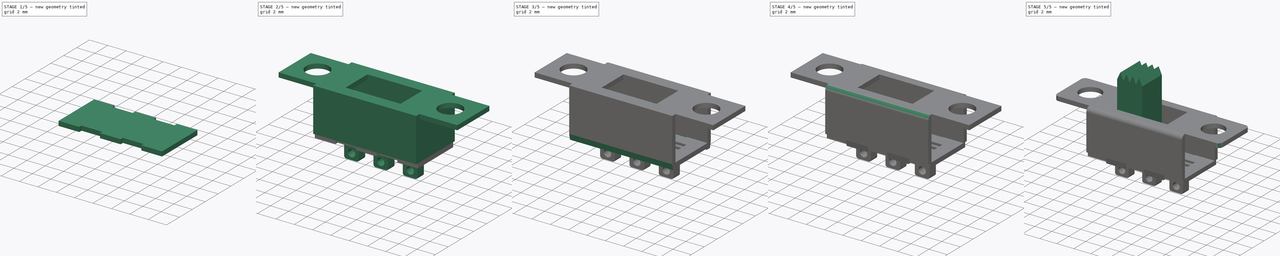
[diagram: build sequence overview — one tinted view per stage of 5, left to right]
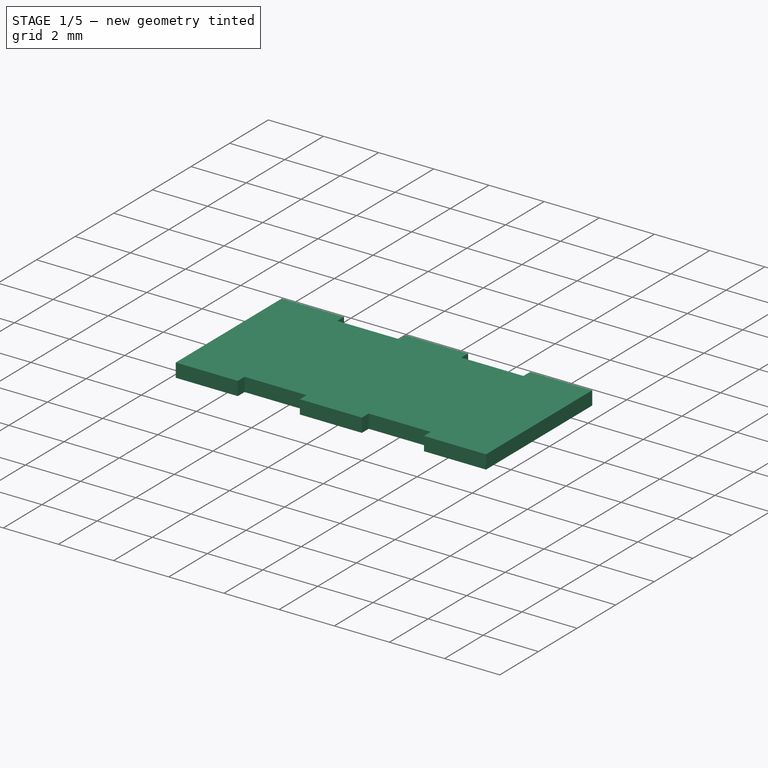
[diagram: stage 1 of 5 — iso view after this stage's code; geometry added in this stage tinted green]
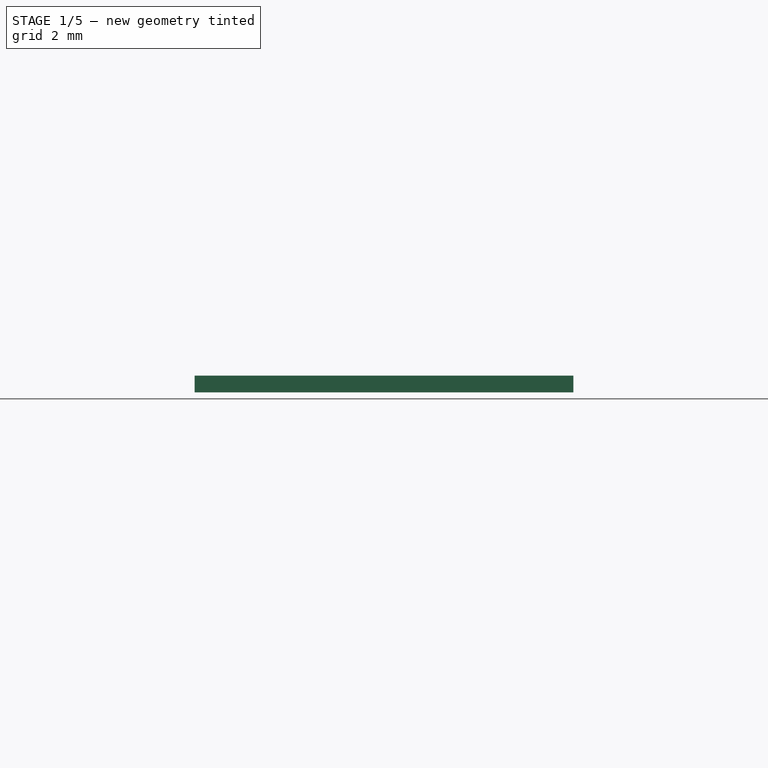
[diagram: stage 1 of 5 — front view after this stage's code; geometry added in this stage tinted green]
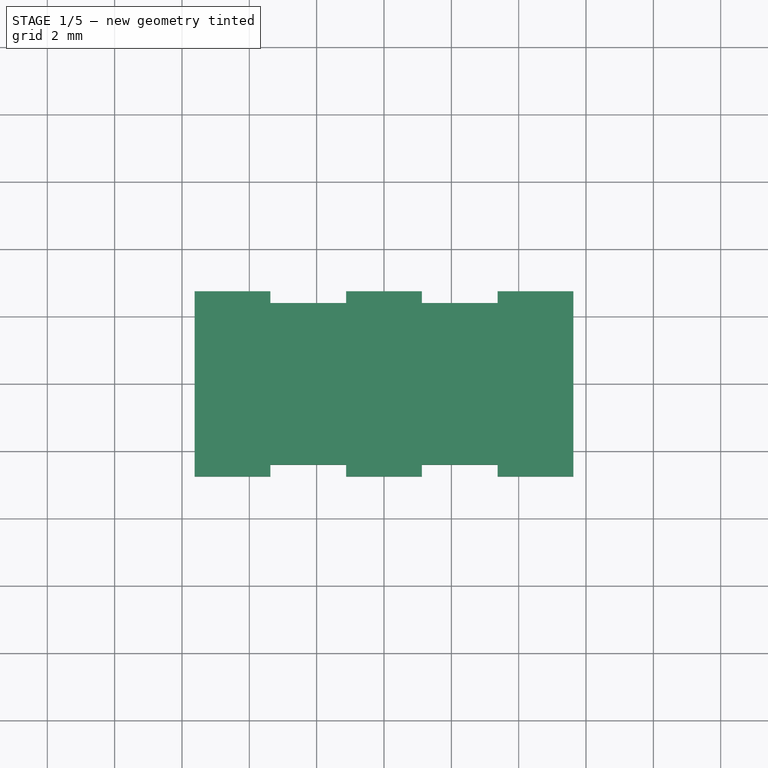
[diagram: stage 1 of 5 — top view after this stage's code; geometry added in this stage tinted green]
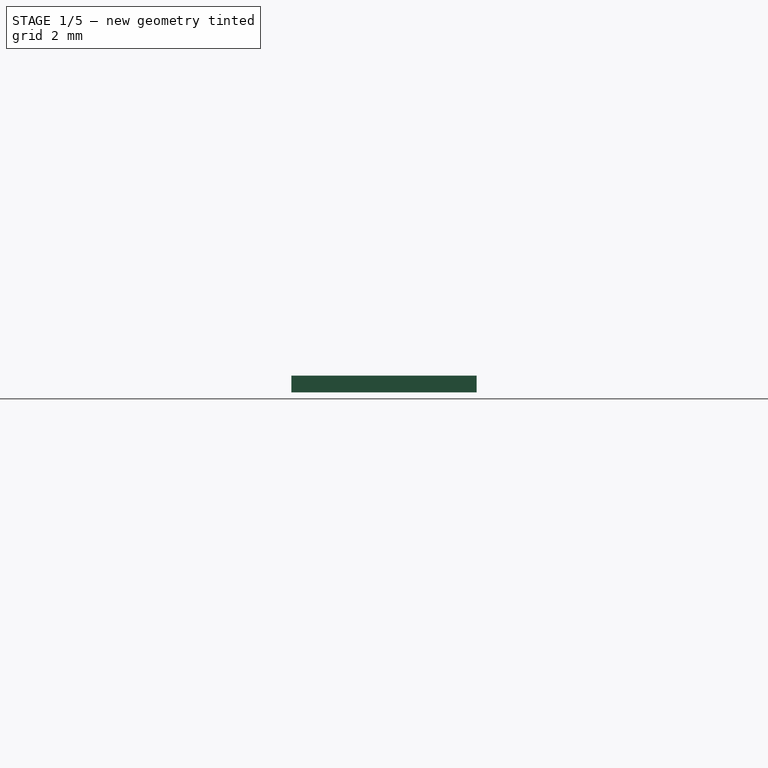
[diagram: stage 1 of 5 — right view after this stage's code; geometry added in this stage tinted green]
FCSTD DOCUMENT  (FreeCAD 1.0R39109 (Git))
Label: switch
License: Creative Commons Attribution-NonCommercial-ShareAlike 4.0
LicenseURL: https://creativecommons.org/licenses/by-nc-sa/4.0/
objects: Sketcher::SketchObject×14, PartDesign::Pocket×8, PartDesign::Pad×7, PartDesign::Body×3, PartDesign::Fillet×2, Spreadsheet::Sheet×1, Part::Part2DObjectPython×1, App::Part×1
note: 83 computed .brp shape members not serialized (recipe doc carries the construction recipe); baked Part::Feature solids carry a one-line shape summary decoded from their .brp

FEATURE [Sketcher::SketchObject] Sketch002
  ArcFitTolerance = 1e-06
  AttachmentOffset = pos=(0,0,-4.77) rot=(0,0,1;0rad)
  AttachmentSupport = -> [XY_Plane002]
  FullyConstrained = true
  MakeInternals = false
  MapMode = 5
  Placement = pos=(0,0,-4.77) rot=(0,0,1;0rad)
  expr: .AttachmentOffset.Base.z = -(<<Parameter>>.Housing_Front_Thickness + <<Parameter>>.Housing_Back_Thickness)
  expr: Constraints[10] = <<Parameter>>.Housing_Back_Height / 2 - <<Parameter>>.Housing_Front_Thickness / 2
  expr: Constraints[11] = <<Parameter>>.Housing_Back_Height - <<Parameter>>.Housing_Front_Thickness
  expr: Constraints[8] = <<Parameter>>.Housing_Back_Width / 2
  expr: Constraints[9] = <<Parameter>>.Housing_Back_Width
  sketch-geometry (4):
    g0: LineSegment StartX=-5.625 StartY=2.75 StartZ=0 EndX=-5.625 EndY=-2.75 EndZ=0
    g1: LineSegment StartX=-5.625 StartY=-2.75 StartZ=0 EndX=5.625 EndY=-2.75 EndZ=0
    g2: LineSegment StartX=5.625 StartY=-2.75 StartZ=0 EndX=5.625 EndY=2.75 EndZ=0
    g3: LineSegment StartX=5.625 StartY=2.75 StartZ=0 EndX=-5.625 EndY=2.75 EndZ=0
  constraints (12):
    c: Coincident(g0,g1)
    c: Coincident(g1,g2)
    c: Coincident(g2,g3)
    c: Coincident(g3,g0)
    c: Vertical(g0)
    c: Vertical(g2)
    c: Horizontal(g1)
    c: Horizontal(g3)
    c: DistanceX(g0,g-1) = 5.625
    c: DistanceX(g3,g3) = 11.25
    c: DistanceY(g-1,g0) = 2.75
    c: DistanceY(g0,g0) = 5.5
FEATURE [PartDesign::Pad] Pad002
  Direction = (0,0,1)
  Length = 0.5
  Length2 = 10
  Profile = -> Sketch002
  ReferenceAxis = -> Sketch002 [N_Axis]
  Refine = true
  Reversed = true
  Suppressed = false
  Type = 0
  expr: Length = <<Parameter>>.Housing_Front_Thickness
FEATURE [Sketcher::SketchObject] Sketch009
  ArcFitTolerance = 1e-06
  AttachmentOffset = pos=(0,0,2.75) rot=(0,0,1;0rad)
  AttachmentSupport = -> [XZ_Plane002]
  FullyConstrained = true
  MakeInternals = false
  MapMode = 5
  Placement = pos=(0,-2.75,6e-16) rot=(1,0,0;1.5708rad)
  expr: .AttachmentOffset.Base.x = 0
  expr: .AttachmentOffset.Base.y = 0
  expr: .AttachmentOffset.Base.z = <<Parameter>>.Housing_Front_Length / 2 - <<Parameter>>.Housing_Front_Thickness / 2
  expr: Constraints[16] = <<Parameter>>.Housing_Back_Width * 1 / 5
  expr: Constraints[17] = <<Parameter>>.Housing_Back_Width * 1 / 10
  expr: Constraints[18] = <<Parameter>>.Housing_Front_Thickness
  expr: Constraints[19] = <<Parameter>>.Housing_Front_Thickness
  expr: Constraints[20] = <<Parameter>>.Housing_Front_Thickness + <<Parameter>>.Housing_Back_Thickness
  expr: Constraints[21] = <<Parameter>>.Housing_Front_Thickness + <<Parameter>>.Housing_Back_Thickness
  expr: Constraints[22] = <<Parameter>>.Housing_Back_Width * 1 / 5
  expr: Constraints[23] = <<Parameter>>.Housing_Back_Width * 1 / 5
  sketch-geometry (8):
    g0: LineSegment StartX=-3.375 StartY=-4.77 StartZ=0 EndX=-3.375 EndY=-5.27 EndZ=0
    g1: LineSegment StartX=-3.375 StartY=-5.27 StartZ=0 EndX=-1.125 EndY=-5.27 EndZ=0
    g2: LineSegment StartX=-1.125 StartY=-5.27 StartZ=0 EndX=-1.125 EndY=-4.77 EndZ=0
    g3: LineSegment StartX=-1.125 StartY=-4.77 StartZ=0 EndX=-3.375 EndY=-4.77 EndZ=0
    g4: LineSegment StartX=1.125 StartY=-4.77 StartZ=0 EndX=1.125 EndY=-5.27 EndZ=0
    g5: LineSegment StartX=1.125 StartY=-5.27 StartZ=0 EndX=3.375 EndY=-5.27 EndZ=0
    g6: LineSegment StartX=3.375 StartY=-5.27 StartZ=0 EndX=3.375 EndY=-4.77 EndZ=0
    g7: LineSegment StartX=3.375 StartY=-4.77 StartZ=0 EndX=1.125 EndY=-4.77 EndZ=0
  constraints (24):
    c: Coincident(g0,g1)
    c: Coincident(g1,g2)
    c: Coincident(g2,g3)
    c: Coincident(g3,g0)
    c: Vertical(g0)
    c: Vertical(g2)
    c: Horizontal(g1)
    c: Horizontal(g3)
    c: Coincident(g4,g5)
    c: Coincident(g5,g6)
    c: Coincident(g6,g7)
    c: Coincident(g7,g4)
    c: Vertical(g4)
    c: Vertical(g6)
    c: Horizontal(g5)
    c: Horizontal(g7)
    c: DistanceX(g2,g4) = 2.25
    c: DistanceX(g2,g-1) = 1.125
    c: DistanceY(g2,g2) = 0.5
    c: DistanceY(g4,g4) = 0.5
    c: DistanceY(g4,g-1) = 4.77
    c: DistanceY(g2,g-1) = 4.77
    c: DistanceX(g3,g3) = 2.25
    c: DistanceX(g7,g7) = 2.25
FEATURE [PartDesign::Pocket] Pocket004
  BaseFeature = -> Pad002
  Direction = (0,1,-2e-16)
  Length = 0.7
  Length2 = 5
  Midplane = true
  Profile = -> Sketch009
  ReferenceAxis = -> Sketch009 [N_Axis]
  Refine = true
  Suppressed = false
  Type = 0
  expr: Length = <<Parameter>>.Housing_Front_Thickness + <<Parameter>>.Housing_Front_Thickness * 2 / 5
FEATURE [Sketcher::SketchObject] Sketch010
  ArcFitTolerance = 1e-06
  AttachmentOffset = pos=(0,0,-2.75) rot=(0,0,1;0rad)
  AttachmentSupport = -> [XZ_Plane002]
  FullyConstrained = true
  MakeInternals = false
  MapMode = 5
  Placement = pos=(0,2.75,-6e-16) rot=(1,0,0;1.5708rad)
  expr: .AttachmentOffset.Base.x = 0
  expr: .AttachmentOffset.Base.y = 0
  expr: .AttachmentOffset.Base.z = -(<<Parameter>>.Housing_Front_Length / 2 - <<Parameter>>.Housing_Front_Thickness / 2)
  expr: Constraints[16] = <<Parameter>>.Housing_Back_Width * 1 / 5
  expr: Constraints[17] = <<Parameter>>.Housing_Back_Width * 1 / 10
  expr: Constraints[18] = <<Parameter>>.Housing_Front_Thickness
  expr: Constraints[19] = <<Parameter>>.Housing_Front_Thickness
  expr: Constraints[20] = <<Parameter>>.Housing_Front_Thickness + <<Parameter>>.Housing_Back_Thickness
  expr: Constraints[21] = <<Parameter>>.Housing_Front_Thickness + <<Parameter>>.Housing_Back_Thickness
  expr: Constraints[22] = <<Parameter>>.Housing_Back_Width * 1 / 5
  expr: Constraints[23] = <<Parameter>>.Housing_Back_Width * 1 / 5
  sketch-geometry (8):
    g0: LineSegment StartX=-3.375 StartY=-4.77 StartZ=0 EndX=-3.375 EndY=-5.27 EndZ=0
    g1: LineSegment StartX=-3.375 StartY=-5.27 StartZ=0 EndX=-1.125 EndY=-5.27 EndZ=0
    g2: LineSegment StartX=-1.125 StartY=-5.27 StartZ=0 EndX=-1.125 EndY=-4.77 EndZ=0
    g3: LineSegment StartX=-1.125 StartY=-4.77 StartZ=0 EndX=-3.375 EndY=-4.77 EndZ=0
    g4: LineSegment StartX=1.125 StartY=-4.77 StartZ=0 EndX=1.125 EndY=-5.27 EndZ=0
    g5: LineSegment StartX=1.125 StartY=-5.27 StartZ=0 EndX=3.375 EndY=-5.27 EndZ=0
    g6: LineSegment StartX=3.375 StartY=-5.27 StartZ=0 EndX=3.375 EndY=-4.77 EndZ=0
    g7: LineSegment StartX=3.375 StartY=-4.77 StartZ=0 EndX=1.125 EndY=-4.77 EndZ=0
  constraints (24):
    c: Coincident(g0,g1)
    c: Coincident(g1,g2)
    c: Coincident(g2,g3)
    c: Coincident(g3,g0)
    c: Vertical(g0)
    c: Vertical(g2)
    c: Horizontal(g1)
    c: Horizontal(g3)
    c: Coincident(g4,g5)
    c: Coincident(g5,g6)
    c: Coincident(g6,g7)
    c: Coincident(g7,g4)
    c: Vertical(g4)
    c: Vertical(g6)
    c: Horizontal(g5)
    c: Horizontal(g7)
    c: DistanceX(g2,g4) = 2.25
    c: DistanceX(g2,g-1) = 1.125
    c: DistanceY(g2,g2) = 0.5
    c: DistanceY(g4,g4) = 0.5
    c: DistanceY(g4,g-1) = 4.77
    c: DistanceY(g2,g-1) = 4.77
    c: DistanceX(g3,g3) = 2.25
    c: DistanceX(g7,g7) = 2.25
FEATURE [PartDesign::Pocket] Pocket005
  BaseFeature = -> Pocket004
  Direction = (0,1,-2e-16)
  Length = 0.7
  Length2 = 5
  Midplane = true
  Profile = -> Sketch010
  ReferenceAxis = -> Sketch010 [N_Axis]
  Refine = true
  Suppressed = false
  Type = 0
  expr: Length = <<Parameter>>.Housing_Front_Thickness + <<Parameter>>.Housing_Front_Thickness * 2 / 5
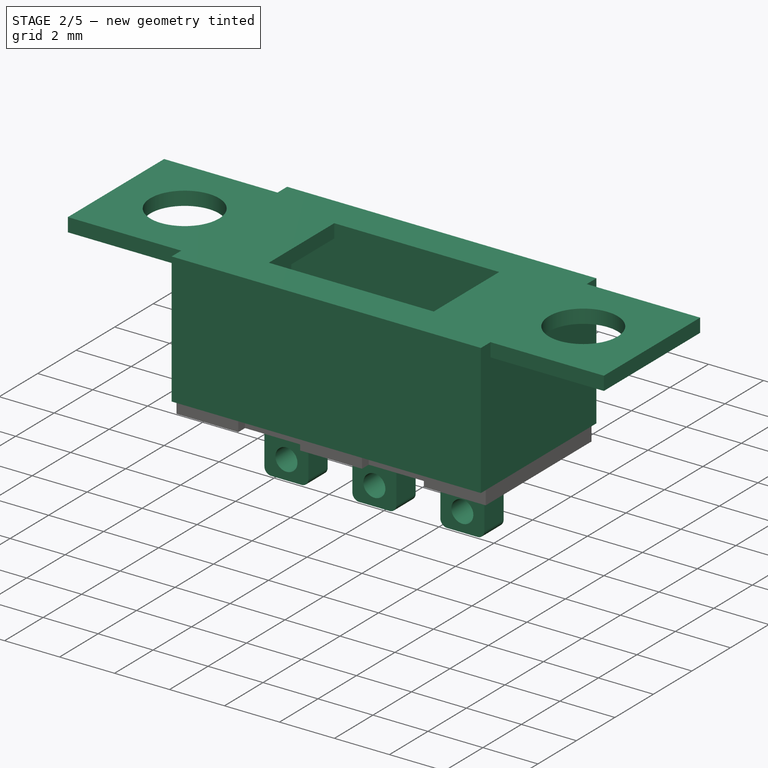
[diagram: stage 2 of 5 — iso view after this stage's code; geometry added in this stage tinted green]
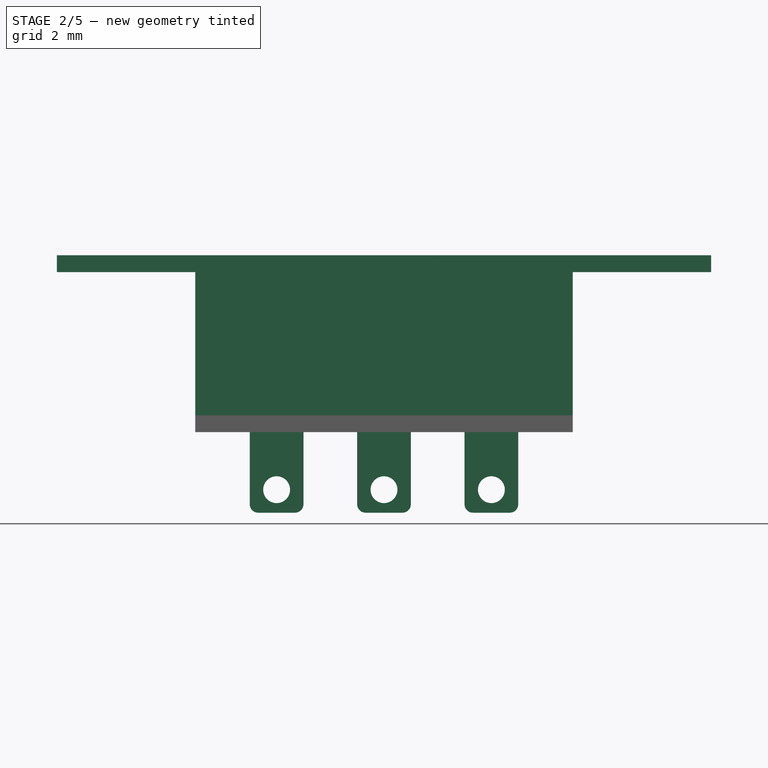
[diagram: stage 2 of 5 — front view after this stage's code; geometry added in this stage tinted green]
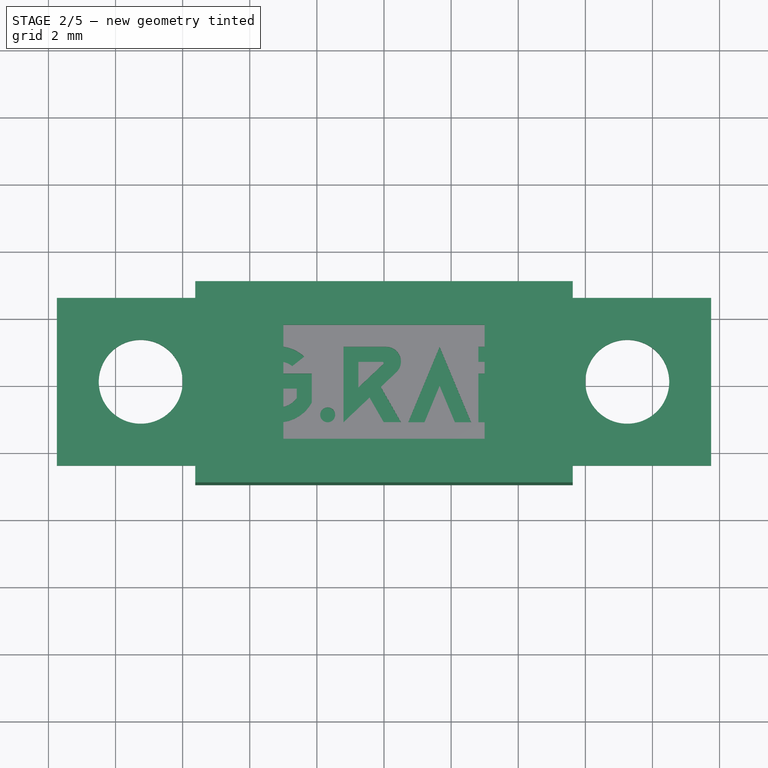
[diagram: stage 2 of 5 — top view after this stage's code; geometry added in this stage tinted green]
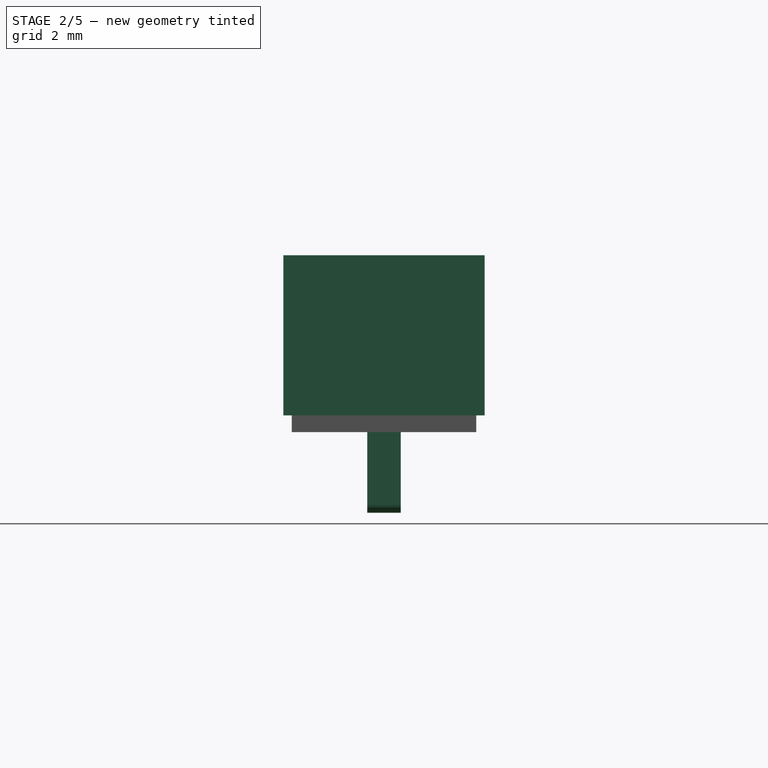
[diagram: stage 2 of 5 — right view after this stage's code; geometry added in this stage tinted green]
FEATURE [Spreadsheet::Sheet] Spreadsheet  label="Parameter"
FEATURE [Sketcher::SketchObject] Sketch
  ArcFitTolerance = 1e-06
  AttachmentSupport = -> [XY_Plane001]
  FullyConstrained = true
  MakeInternals = false
  MapMode = 5
  expr: Constraints[18] = <<Parameter>>.Housing_Clearance_Width
  expr: Constraints[19] = <<Parameter>>.Housing_Clearance_Length
  expr: Constraints[20] = <<Parameter>>.Housing_Clearance_Width / 2
  expr: Constraints[21] = <<Parameter>>.Housing_Clearance_Length / 2
  expr: Constraints[40] = <<Parameter>>.Housing_Front_Width
  expr: Constraints[41] = <<Parameter>>.Housing_Front_Length
  expr: Constraints[42] = <<Parameter>>.Housing_Front_Thickness
  expr: Constraints[43] = <<Parameter>>.Housing_Front_Thickness
  expr: Constraints[44] = <<Parameter>>.Housing_Front_Thickness
  expr: Constraints[45] = <<Parameter>>.Housing_Front_Thickness
  expr: Constraints[48] = <<Parameter>>.Housing_Front_Length / 2
  expr: Constraints[49] = <<Parameter>>.Housing_Back_Width
  expr: Constraints[50] = <<Parameter>>.Housing_Back_Width
  expr: Constraints[51] = <<Parameter>>.Housing_Back_Width / 2
  expr: Constraints[52] = (<<Parameter>>.Housing_Front_Width - <<Parameter>>.Housing_Back_Width) / 2
  expr: Constraints[5] = <<Parameter>>.Housing_Holes_Diameter
  expr: Constraints[8] = <<Parameter>>.Housing_Front_Width / 2 - <<Parameter>>.Housing_Holes_Border_Distance
  expr: Constraints[9] = <<Parameter>>.Housing_Front_Width / 2 - <<Parameter>>.Housing_Holes_Border_Distance
  sketch-geometry (18):
    g0: LineSegment StartX=-9.75 StartY=2.5 StartZ=0 EndX=-9.75 EndY=-2.5 EndZ=0
    g1: LineSegment StartX=-5.625 StartY=-3 StartZ=0 EndX=5.625 EndY=-3 EndZ=0
    g2: LineSegment StartX=9.75 StartY=-2.5 StartZ=0 EndX=9.75 EndY=2.5 EndZ=0
    g3: LineSegment StartX=5.625 StartY=3 StartZ=0 EndX=-5.625 EndY=3 EndZ=0
    g4: Circle CenterX=-7.25 CenterY=0 CenterZ=0 NormalX=0 NormalY=0 NormalZ=1 AngleXU=0 Radius=1.25
    g5: Circle CenterX=7.25 CenterY=0 CenterZ=0 NormalX=0 NormalY=0 NormalZ=1 AngleXU=0 Radius=1.25
    g6: LineSegment StartX=-3 StartY=1.7 StartZ=0 EndX=-3 EndY=-1.7 EndZ=0
    g7: LineSegment StartX=-3 StartY=-1.7 StartZ=0 EndX=3 EndY=-1.7 EndZ=0
    g8: LineSegment StartX=3 StartY=-1.7 StartZ=0 EndX=3 EndY=1.7 EndZ=0
    g9: LineSegment StartX=3 StartY=1.7 StartZ=0 EndX=-3 EndY=1.7 EndZ=0
    g10: LineSegment StartX=-9.75 StartY=2.5 StartZ=0 EndX=-5.625 EndY=2.5 EndZ=0
    g11: LineSegment StartX=-5.625 StartY=2.5 StartZ=0 EndX=-5.625 EndY=3 EndZ=0
    g12: LineSegment StartX=-9.75 StartY=-2.5 StartZ=0 EndX=-5.625 EndY=-2.5 EndZ=0
    g13: LineSegment StartX=-5.625 StartY=-2.5 StartZ=0 EndX=-5.625 EndY=-3 EndZ=0
    g14: LineSegment StartX=5.625 StartY=-3 StartZ=0 EndX=5.625 EndY=-2.5 EndZ=0
    g15: LineSegment StartX=5.625 StartY=-2.5 StartZ=0 EndX=9.75 EndY=-2.5 EndZ=0
    g16: LineSegment StartX=9.75 StartY=2.5 StartZ=0 EndX=5.625 EndY=2.5 EndZ=0
    g17: LineSegment StartX=5.625 StartY=2.5 StartZ=0 EndX=5.625 EndY=3 EndZ=0
  constraints (54):
    c: Vertical(g0)
    c: Vertical(g2)
    c: Horizontal(g1)
    c: Horizontal(g3)
    c: Horizontal(g4,g5)
    c: Diameter(g4) = 2.5
    c: Equal(g4,g5)
    c: PointOnObject(g4,g-1)
    c: DistanceX(g4,g-1) = 7.25
    c: DistanceX(g-1,g5) = 7.25
    c: Coincident(g6,g7)
    c: Coincident(g7,g8)
    c: Coincident(g8,g9)
    c: Coincident(g9,g6)
    c: Vertical(g6)
    c: Vertical(g8)
    c: Horizontal(g7)
    c: Horizontal(g9)
    c: DistanceX(g9,g9) = 6
    c: DistanceY(g6,g6) = 3.4
    c: DistanceX(g-1,g8) = 3
    c: DistanceY(g-1,g8) = 1.7
    c: Horizontal(g10)
    c: Coincident(g11,g10)
    c: Vertical(g11)
    c: Horizontal(g12)
    c: Coincident(g13,g12)
    c: Vertical(g13)
    c: Vertical(g14)
    c: Horizontal(g15)
    c: Horizontal(g16)
    c: Vertical(g17)
    c: Coincident(g3,g11)
    c: Coincident(g0,g10)
    c: Coincident(g0,g12)
    c: Coincident(g1,g13)
    c: Coincident(g1,g14)
    c: Coincident(g2,g15)
    c: Coincident(g2,g16)
    c: Coincident(g3,g17)
    c: DistanceX(g0,g2) = 19.5
    c: DistanceY(g1,g3) = 6
    c: DistanceY(g11,g11) = 0.5
    c: DistanceY(g13,g13) = 0.5
    c: DistanceY(g14,g14) = 0.5
    c: DistanceY(g17,g17) = 0.5
    c: Coincident(g16,g17)
    c: Coincident(g14,g15)
    c: DistanceY(g-1,g3) = 3
    c: DistanceX(g3,g3) = 11.25
    c: DistanceX(g1,g1) = 11.25
    c: DistanceX(g3,g-1) = 5.625
    c: DistanceX(g16,g16) = 4.125
    c: Equal(g16,g15)
FEATURE [PartDesign::Pad] Pad
  Direction = (0,0,1)
  Length = 0.5
  Length2 = 10
  Profile = -> Sketch
  ReferenceAxis = -> Sketch [N_Axis]
  Refine = true
  Reversed = true
  Suppressed = false
  Type = 0
  expr: Length = <<Parameter>>.Housing_Front_Thickness
FEATURE [Sketcher::SketchObject] Sketch001
  ArcFitTolerance = 1e-06
  AttachmentOffset = pos=(0,0,-0.5) rot=(0,0,1;0rad)
  AttachmentSupport = -> [XY_Plane001]
  FullyConstrained = true
  MakeInternals = false
  MapMode = 5
  Placement = pos=(0,0,-0.5) rot=(0,0,1;0rad)
  expr: .AttachmentOffset.Base.z = -<<Parameter>>.Housing_Front_Thickness
  expr: Constraints[16] = <<Parameter>>.Housing_Back_Width
  expr: Constraints[17] = <<Parameter>>.Housing_Back_Height
  expr: Constraints[18] = <<Parameter>>.Housing_Back_Width / 2
  expr: Constraints[19] = <<Parameter>>.Housing_Back_Height / 2
  expr: Constraints[20] = <<Parameter>>.Housing_Back_Width - <<Parameter>>.Housing_Front_Thickness * 2
  expr: Constraints[21] = <<Parameter>>.Housing_Back_Height - <<Parameter>>.Housing_Front_Thickness * 2
  expr: Constraints[22] = (<<Parameter>>.Housing_Back_Height - <<Parameter>>.Housing_Front_Thickness * 2) / 2
  expr: Constraints[23] = (<<Parameter>>.Housing_Back_Width - <<Parameter>>.Housing_Front_Thickness * 2) / 2
  sketch-geometry (8):
    g0: LineSegment StartX=-5.625 StartY=3 StartZ=0 EndX=-5.625 EndY=-3 EndZ=0
    g1: LineSegment StartX=-5.625 StartY=-3 StartZ=0 EndX=5.625 EndY=-3 EndZ=0
    g2: LineSegment StartX=5.625 StartY=-3 StartZ=0 EndX=5.625 EndY=3 EndZ=0
    g3: LineSegment StartX=5.625 StartY=3 StartZ=0 EndX=-5.625 EndY=3 EndZ=0
    g4: LineSegment StartX=-5.125 StartY=2.5 StartZ=0 EndX=-5.125 EndY=-2.5 EndZ=0
    g5: LineSegment StartX=-5.125 StartY=-2.5 StartZ=0 EndX=5.125 EndY=-2.5 EndZ=0
    g6: LineSegment StartX=5.125 StartY=-2.5 StartZ=0 EndX=5.125 EndY=2.5 EndZ=0
    g7: LineSegment StartX=5.125 StartY=2.5 StartZ=0 EndX=-5.125 EndY=2.5 EndZ=0
  constraints (24):
    c: Coincident(g0,g1)
    c: Coincident(g1,g2)
    c: Coincident(g2,g3)
    c: Coincident(g3,g0)
    c: Vertical(g0)
    c: Vertical(g2)
    c: Horizontal(g1)
    c: Horizontal(g3)
    c: Coincident(g4,g5)
    c: Coincident(g5,g6)
    c: Coincident(g6,g7)
    c: Coincident(g7,g4)
    c: Vertical(g4)
    c: Vertical(g6)
    c: Horizontal(g5)
    c: Horizontal(g7)
    c: DistanceX(g3,g3) = 11.25
    c: DistanceY(g0,g0) = 6
    c: DistanceX(g-1,g2) = 5.625
    c: DistanceY(g-1,g2) = 3
    c: DistanceX(g7,g7) = 10.25
    c: DistanceY(g4,g4) = 5
    c: DistanceY(g4) = 2.5
    c: DistanceX(g-1,g6) = 5.125
FEATURE [PartDesign::Pad] Pad001
  BaseFeature = -> Pad
  Direction = (0,0,1)
  Length = 4.27
  Length2 = 10
  Profile = -> Sketch001
  ReferenceAxis = -> Sketch001 [N_Axis]
  Refine = true
  Reversed = true
  Suppressed = false
  Type = 0
  expr: Length = <<Parameter>>.Housing_Back_Thickness
FEATURE [Sketcher::SketchObject] Sketch011
  ArcFitTolerance = 1e-06
  AttachmentSupport = -> [XZ_Plane002]
  FullyConstrained = true
  MakeInternals = false
  MapMode = 5
  Placement = pos=(0,0,0) rot=(1,0,0;1.5708rad)
  expr: Constraints[42] = <<Parameter>>.Connection_Lug_Width
  expr: Constraints[43] = <<Parameter>>.Connection_Lug_Width
  expr: Constraints[44] = <<Parameter>>.Connection_Lug_Width
  expr: Constraints[50] = <<Parameter>>.Connection_Lug_Radius
  expr: Constraints[51] = <<Parameter>>.Connection_Lug_Length
  expr: Constraints[52] = <<Parameter>>.Connection_Lug_Length
  expr: Constraints[53] = <<Parameter>>.Connection_Lug_Length
  expr: Constraints[54] = <<Parameter>>.Housing_Front_Thickness * 2 + <<Parameter>>.Housing_Back_Thickness
  expr: Constraints[55] = <<Parameter>>.Housing_Front_Thickness * 2 + <<Parameter>>.Housing_Back_Thickness
  expr: Constraints[56] = <<Parameter>>.Housing_Front_Thickness * 2 + <<Parameter>>.Housing_Back_Thickness
  expr: Constraints[57] = <<Parameter>>.Connection_Lug_Width / 2
  expr: Constraints[58] = <<Parameter>>.Connection_Lug_Width
  expr: Constraints[59] = <<Parameter>>.Connection_Lug_Width
  expr: Constraints[64] = <<Parameter>>.Connection_Lug_Diameter
  expr: Constraints[66] = <<Parameter>>.Connection_Lug_Width / 2
  expr: Constraints[67] = <<Parameter>>.Connection_Lug_Width / 2
  expr: Constraints[68] = <<Parameter>>.Connection_Lug_Length * 5 / 7
  sketch-geometry (27):
    g0: LineSegment StartX=-4 StartY=-5.27 StartZ=0 EndX=-4 EndY=-7.42 EndZ=0
    g1: LineSegment StartX=-3.75 StartY=-7.67 StartZ=0 EndX=-2.65 EndY=-7.67 EndZ=0
    g2: LineSegment StartX=-2.4 StartY=-7.42 StartZ=0 EndX=-2.4 EndY=-5.27 EndZ=0
    g3: LineSegment StartX=-2.4 StartY=-5.27 StartZ=0 EndX=-4 EndY=-5.27 EndZ=0
    g4: LineSegment StartX=-0.8 StartY=-5.27 StartZ=0 EndX=-0.8 EndY=-7.42 EndZ=0
    g5: LineSegment StartX=-0.55 StartY=-7.67 StartZ=0 EndX=0.55 EndY=-7.67 EndZ=0
    g6: LineSegment StartX=0.8 StartY=-7.42 StartZ=0 EndX=0.8 EndY=-5.27 EndZ=0
    g7: LineSegment StartX=0.8 StartY=-5.27 StartZ=0 EndX=-0.8 EndY=-5.27 EndZ=0
    g8: LineSegment StartX=2.4 StartY=-5.27 StartZ=0 EndX=2.4 EndY=-7.42 EndZ=0
    g9: LineSegment StartX=2.65 StartY=-7.67 StartZ=0 EndX=3.75 EndY=-7.67 EndZ=0
    g10: LineSegment StartX=4 StartY=-7.42 StartZ=0 EndX=4 EndY=-5.27 EndZ=0
    g11: LineSegment StartX=4 StartY=-5.27 StartZ=0 EndX=2.4 EndY=-5.27 EndZ=0
    g12: ArcOfCircle CenterX=-3.75 CenterY=-7.42 CenterZ=0 NormalX=0 NormalY=0 NormalZ=1 AngleXU=0 Radius=0.25 StartAngle=3.14159 EndAngle=4.71239
    g13: GeomPoint [constr] X=-4 Y=-7.67 Z=0
    g14: ArcOfCircle CenterX=-2.65 CenterY=-7.42 CenterZ=0 NormalX=0 NormalY=0 NormalZ=1 AngleXU=0 Radius=0.25 StartAngle=4.71239 EndAngle=6.28319
    g15: GeomPoint [constr] X=-2.4 Y=-7.67 Z=0
    g16: ArcOfCircle CenterX=-0.55 CenterY=-7.42 CenterZ=0 NormalX=0 NormalY=0 NormalZ=1 AngleXU=0 Radius=0.25 StartAngle=3.14159 EndAngle=4.71239
    g17: GeomPoint [constr] X=-0.8 Y=-7.67 Z=0
    g18: ArcOfCircle CenterX=0.55 CenterY=-7.42 CenterZ=0 NormalX=0 NormalY=0 NormalZ=1 AngleXU=0 Radius=0.25 StartAngle=4.71239 EndAngle=6.28319
    g19: GeomPoint [constr] X=0.8 Y=-7.67 Z=0
    g20: ArcOfCircle CenterX=2.65 CenterY=-7.42 CenterZ=0 NormalX=0 NormalY=0 NormalZ=1 AngleXU=0 Radius=0.25 StartAngle=3.14159 EndAngle=4.71239
    g21: GeomPoint [constr] X=2.4 Y=-7.67 Z=0
    g22: ArcOfCircle CenterX=3.75 CenterY=-7.42 CenterZ=0 NormalX=0 NormalY=0 NormalZ=1 AngleXU=0 Radius=0.25 StartAngle=4.71239 EndAngle=6.28319
    g23: GeomPoint [constr] X=4 Y=-7.67 Z=0
    g24: Circle CenterX=-3.2 CenterY=-6.98429 CenterZ=0 NormalX=0 NormalY=0 NormalZ=1 AngleXU=0 Radius=0.4
    g25: Circle CenterX=0 CenterY=-6.98429 CenterZ=0 NormalX=0 NormalY=0 NormalZ=1 AngleXU=0 Radius=0.4
    g26: Circle CenterX=3.2 CenterY=-6.98429 CenterZ=0 NormalX=0 NormalY=0 NormalZ=1 AngleXU=0 Radius=0.4
  constraints (69):
    c: Coincident(g2,g3)
    c: Coincident(g3,g0)
    c: Vertical(g0)
    c: Vertical(g2)
    c: Horizontal(g1)
    c: Horizontal(g3)
    c: Coincident(g6,g7)
    c: Coincident(g7,g4)
    c: Vertical(g4)
    c: Vertical(g6)
    c: Horizontal(g5)
    c: Horizontal(g7)
    c: Coincident(g10,g11)
    c: Coincident(g11,g8)
    c: Vertical(g8)
    c: Vertical(g10)
    c: Horizontal(g9)
    c: Horizontal(g11)
    c: PointOnObject(g13,g0)
    c: PointOnObject(g13,g1)
    c: Tangent(g0,g12) = -1.5708
    c: Tangent(g1,g12) = -1.5708
    c: PointOnObject(g15,g1)
    c: PointOnObject(g15,g2)
    c: Tangent(g1,g14) = -1.5708
    c: Tangent(g2,g14) = -1.5708
    c: PointOnObject(g17,g4)
    c: PointOnObject(g17,g5)
    c: Tangent(g4,g16) = -1.5708
    c: Tangent(g5,g16) = -1.5708
    c: PointOnObject(g19,g5)
    c: PointOnObject(g19,g6)
    c: Tangent(g5,g18) = -1.5708
    c: Tangent(g6,g18) = -1.5708
    c: PointOnObject(g21,g8)
    c: PointOnObject(g21,g9)
    c: Tangent(g8,g20) = -1.5708
    c: Tangent(g9,g20) = -1.5708
    c: PointOnObject(g23,g9)
    c: PointOnObject(g23,g10)
    c: Tangent(g9,g22) = -1.5708
    c: Tangent(g10,g22) = -1.5708
    c: DistanceX(g3,g3) = 1.6
    c: DistanceX(g7,g7) = 1.6
    c: DistanceX(g11,g11) = 1.6
    c: Equal(g12,g14)
    c: Equal(g14,g16)
    c: Equal(g16,g18)
    c: Equal(g18,g20)
    c: Equal(g20,g22)
    c: Radius(g12) = 0.25
    c: DistanceY(g1,g2) = 2.4
    c: DistanceY(g5,g6) = 2.4
    c: DistanceY(g9,g10) = 2.4
    c: DistanceY(g2,g-1) = 5.27
    c: DistanceY(g6,g-1) = 5.27
    c: DistanceY(g10,g-1) = 5.27
    c: DistanceX(g-1,g6) = 0.8
    c: DistanceX(g2,g4) = 1.6
    c: DistanceX(g6,g8) = 1.6
    c: Horizontal(g24,g25)
    c: Horizontal(g25,g26)
    c: Equal(g24,g25)
    c: Equal(g25,g26)
    c: Diameter(g24) = 0.8
    c: PointOnObject(g25,g-2)
    c: DistanceX(g8,g26) = 0.8
    c: DistanceX(g24,g2) = 0.8
    c: DistanceY(g26,g8) = 1.71429
FEATURE [PartDesign::Pad] Pad005
  BaseFeature = -> Pocket005
  Direction = (0,-1,2e-16)
  Length = 1
  Length2 = 10
  Midplane = true
  Profile = -> Sketch011
  ReferenceAxis = -> Sketch011 [N_Axis]
  Refine = true
  Suppressed = false
  Type = 0
  expr: Length = <<Parameter>>.Connection_Lug_Thickness
FEATURE [PartDesign::Body] Body  label="Housing"
  AllowCompound = false
  Group = -> [Sketch,Pad,Sketch001,Pad001,Sketch003,Pocket,Sketch004,Pad003,Sketch005,Pad004,Sketch006,Pocket001,Sketch007,Pocket002,Sketch008,Pocket003,Fillet,Fillet001]
  Origin = -> Origin001
  Tip = -> Fillet001
FEATURE [Part::Part2DObjectPython] ShapeString  # Draft 2D object (typed FeaturePython)
  FontFile = ./Black Future.otf
  Fuse = false
  Justification = 4
  JustificationReference = 0
  KeepLeftMargin = false
  MakeFace = true
  ObliqueAngle = 0
  Placement = pos=(0,0,-4.77) rot=(0,0,1;0rad)
  ScaleToSize = true
  Size = 2.25
  String = G.RAF
  Tracking = 0
  expr: .Placement.Base.x = 0
  expr: .Placement.Base.y = 0
  expr: .Placement.Base.z = -(<<Parameter>>.Housing_Back_Thickness + <<Parameter>>.Housing_Front_Thickness)
  expr: Size = <<Parameter>>.Copyright_Size
  expr: String = <<Parameter>>.Copyright_Text
FEATURE [PartDesign::Pocket] Pocket007
  BaseFeature = -> Pad005
  Direction = (0,0,-1)
  Length = 0.35
  Length2 = 5
  Profile = -> ShapeString
  ReferenceAxis = -> ShapeString [N_Axis]
  Refine = true
  Suppressed = false
  Type = 0
  expr: Length = <<Parameter>>.Copyright_Depth
FEATURE [PartDesign::Body] Body001  label="Endplate"
  AllowCompound = false
  Group = -> [Sketch002,Pad002,Sketch009,Pocket004,Sketch010,Pocket005,Sketch011,Pad005,ShapeString,Pocket007]
  Origin = -> Origin002
  Tip = -> Pocket007
FEATURE [App::Part] Part  label="SP2T_Switch"
  Group = -> [Body,Body001,Body002]
  Origin = -> Origin
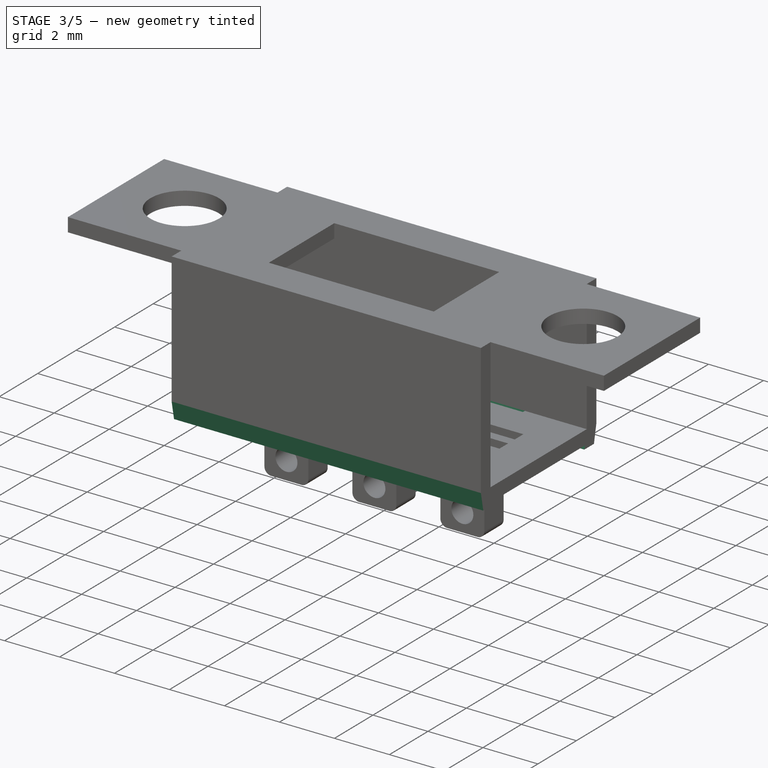
[diagram: stage 3 of 5 — iso view after this stage's code; geometry added in this stage tinted green]
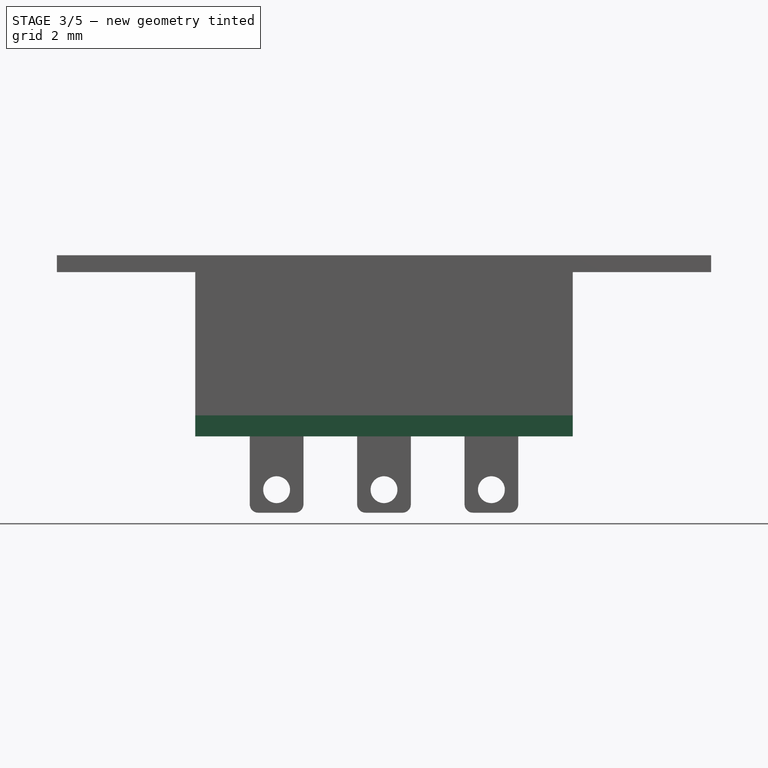
[diagram: stage 3 of 5 — front view after this stage's code; geometry added in this stage tinted green]
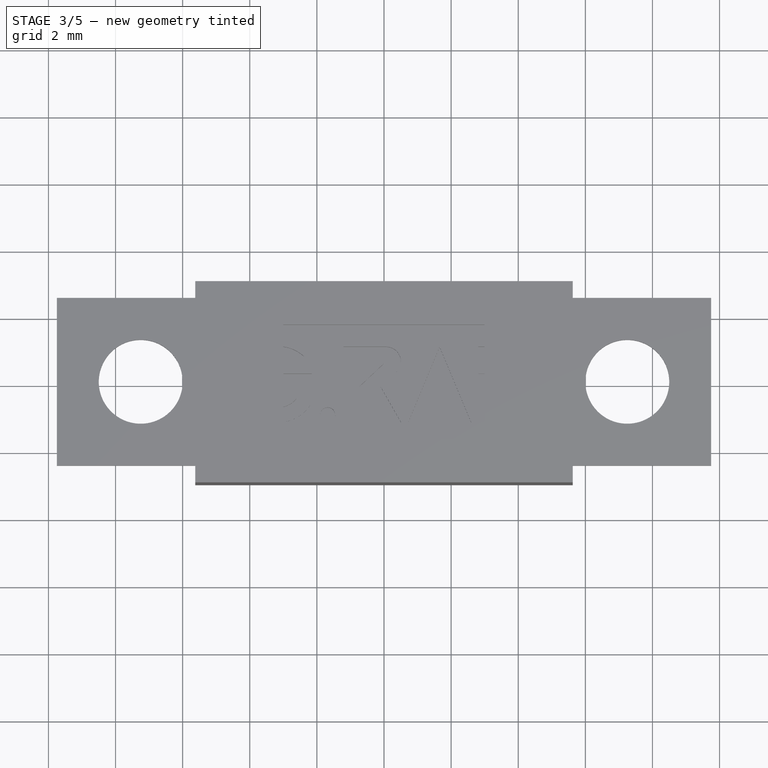
[diagram: stage 3 of 5 — top view after this stage's code; geometry added in this stage tinted green]
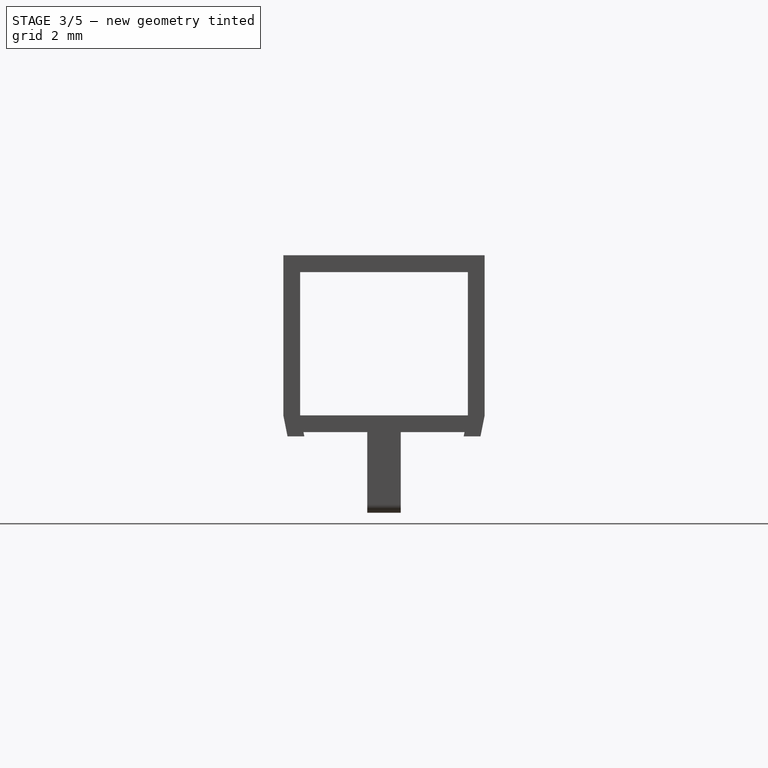
[diagram: stage 3 of 5 — right view after this stage's code; geometry added in this stage tinted green]
FEATURE [Sketcher::SketchObject] Sketch003
  ArcFitTolerance = 1e-06
  AttachmentSupport = -> [YZ_Plane001]
  FullyConstrained = true
  MakeInternals = false
  MapMode = 5
  Placement = pos=(0,0,0) rot=(0.57735,0.57735,0.57735;2.0944rad)
  expr: .AttachmentOffset.Base.x = 0
  expr: .AttachmentOffset.Base.y = 0
  expr: .AttachmentOffset.Base.z = 0
  expr: Constraints[10] = <<Parameter>>.Housing_Back_Thickness
  expr: Constraints[11] = <<Parameter>>.Housing_Front_Thickness
  expr: Constraints[8] = <<Parameter>>.Housing_Front_Length - <<Parameter>>.Housing_Front_Thickness * 2
  expr: Constraints[9] = (<<Parameter>>.Housing_Front_Length - <<Parameter>>.Housing_Front_Thickness * 2) / 2
  sketch-geometry (4):
    g0: LineSegment StartX=-2.5 StartY=-0.5 StartZ=0 EndX=-2.5 EndY=-4.77 EndZ=0
    g1: LineSegment StartX=-2.5 StartY=-4.77 StartZ=0 EndX=2.5 EndY=-4.77 EndZ=0
    g2: LineSegment StartX=2.5 StartY=-4.77 StartZ=0 EndX=2.5 EndY=-0.5 EndZ=0
    g3: LineSegment StartX=2.5 StartY=-0.5 StartZ=0 EndX=-2.5 EndY=-0.5 EndZ=0
  constraints (12):
    c: Coincident(g0,g1)
    c: Coincident(g1,g2)
    c: Coincident(g2,g3)
    c: Coincident(g3,g0)
    c: Vertical(g0)
    c: Vertical(g2)
    c: Horizontal(g1)
    c: Horizontal(g3)
    c: DistanceX(g0,g2) = 5
    c: DistanceX(g0,g-1) = 2.5
    c: DistanceY(g0,g0) = 4.27
    c: DistanceY(g0,g-1) = 0.5
FEATURE [PartDesign::Pocket] Pocket
  BaseFeature = -> Pad001
  Direction = (-1,0,0)
  Length = 5
  Length2 = 5
  Midplane = true
  Profile = -> Sketch003
  ReferenceAxis = -> Sketch003 [N_Axis]
  Refine = true
  Suppressed = false
  Type = 1
FEATURE [Sketcher::SketchObject] Sketch004
  ArcFitTolerance = 1e-06
  AttachmentSupport = -> [YZ_Plane001]
  FullyConstrained = true
  MakeInternals = false
  MapMode = 5
  Placement = pos=(0,0,0) rot=(0.57735,0.57735,0.57735;2.0944rad)
  expr: Constraints[10] = <<Parameter>>.Housing_Front_Thickness + <<Parameter>>.Housing_Back_Thickness
  expr: Constraints[11] = <<Parameter>>.Housing_Front_Length / 2
  expr: Constraints[3] = <<Parameter>>.Housing_Front_Thickness
  expr: Constraints[6] = <<Parameter>>.Housing_Front_Thickness
  expr: Constraints[8] = <<Parameter>>.Housing_Front_Thickness * 1 / 4
  expr: Constraints[9] = <<Parameter>>.Housing_Front_Thickness * 5 / 4
  sketch-geometry (4):
    g0: LineSegment StartX=-2.5 StartY=-4.77 StartZ=0 EndX=-3 EndY=-4.77 EndZ=0
    g1: LineSegment StartX=-3 StartY=-4.77 StartZ=0 EndX=-2.875 EndY=-5.395 EndZ=0
    g2: LineSegment StartX=-2.5 StartY=-4.77 StartZ=0 EndX=-2.375 EndY=-5.395 EndZ=0
    g3: LineSegment StartX=-2.375 StartY=-5.395 StartZ=0 EndX=-2.875 EndY=-5.395 EndZ=0
  constraints (12):
    c: Horizontal(g0)
    c: Coincident(g3,g2)
    c: Coincident(g3,g1)
    c: DistanceX(g0,g0) = 0.5
    c: Coincident(g1,g0)
    c: Coincident(g2,g0)
    c: DistanceX(g3,g3) = 0.5
    c: Horizontal(g3)
    c: DistanceX(g0,g1) = 0.125
    c: DistanceY(g1,g0) = 0.625
    c: DistanceY(g0,g-1) = 4.77
    c: DistanceX(g0,g-1) = 3
FEATURE [PartDesign::Pad] Pad003
  BaseFeature = -> Pocket
  Direction = (1,0,0)
  Length = 11.25
  Length2 = 10
  Midplane = true
  Profile = -> Sketch004
  ReferenceAxis = -> Sketch004 [N_Axis]
  Refine = true
  Suppressed = false
  Type = 0
  expr: Length = <<Parameter>>.Housing_Back_Width
FEATURE [Sketcher::SketchObject] Sketch005
  ArcFitTolerance = 1e-06
  AttachmentSupport = -> [YZ_Plane001]
  FullyConstrained = true
  MakeInternals = false
  MapMode = 5
  Placement = pos=(0,0,0) rot=(0.57735,0.57735,0.57735;2.0944rad)
  expr: Constraints[10] = <<Parameter>>.Housing_Front_Thickness + <<Parameter>>.Housing_Back_Thickness
  expr: Constraints[11] = <<Parameter>>.Housing_Front_Length / 2
  expr: Constraints[6] = <<Parameter>>.Housing_Front_Thickness
  expr: Constraints[7] = <<Parameter>>.Housing_Front_Thickness
  expr: Constraints[8] = <<Parameter>>.Housing_Front_Thickness * 1 / 4
  expr: Constraints[9] = <<Parameter>>.Housing_Front_Thickness * 5 / 4
  sketch-geometry (4):
    g0: LineSegment StartX=2.5 StartY=-4.77 StartZ=0 EndX=3 EndY=-4.77 EndZ=0
    g1: LineSegment StartX=3 StartY=-4.77 StartZ=0 EndX=2.875 EndY=-5.395 EndZ=0
    g2: LineSegment StartX=2.875 StartY=-5.395 StartZ=0 EndX=2.375 EndY=-5.395 EndZ=0
    g3: LineSegment StartX=2.375 StartY=-5.395 StartZ=0 EndX=2.5 EndY=-4.77 EndZ=0
  constraints (12):
    c: Horizontal(g0)
    c: Coincident(g1,g0)
    c: Coincident(g2,g1)
    c: Coincident(g3,g0)
    c: Horizontal(g2)
    c: Coincident(g2,g3)
    c: DistanceX(g0,g0) = 0.5
    c: DistanceX(g2,g2) = 0.5
    c: DistanceX(g2,g0) = 0.125
    c: DistanceY(g2,g0) = 0.625
    c: DistanceY(g0,g-1) = 4.77
    c: DistanceX(g-1,g0) = 3
FEATURE [PartDesign::Pad] Pad004
  BaseFeature = -> Pad003
  Direction = (1,0,0)
  Length = 11.25
  Length2 = 10
  Midplane = true
  Profile = -> Sketch005
  ReferenceAxis = -> Sketch005 [N_Axis]
  Refine = true
  Suppressed = false
  Type = 0
  expr: Length = <<Parameter>>.Housing_Back_Width
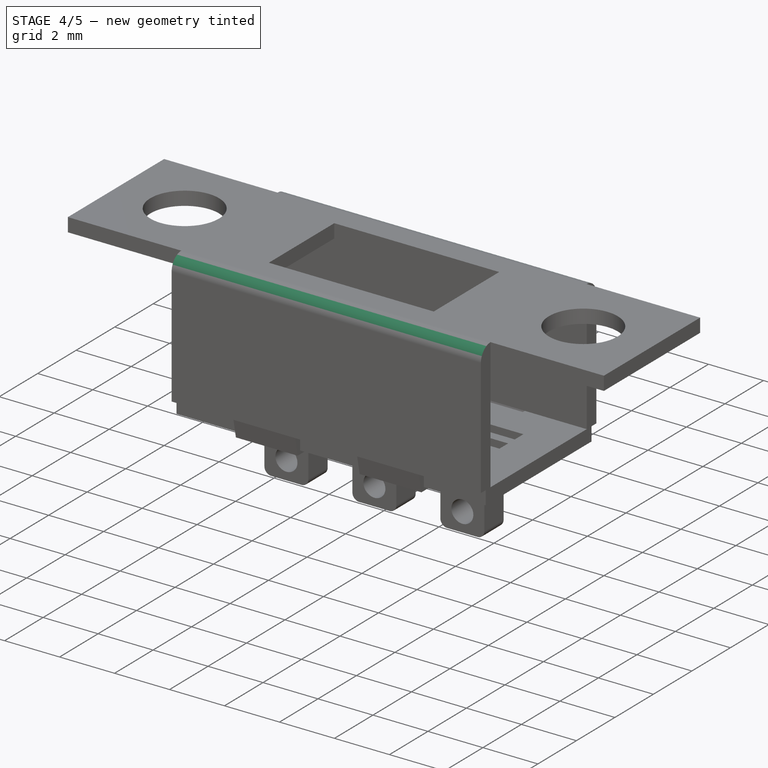
[diagram: stage 4 of 5 — iso view after this stage's code; geometry added in this stage tinted green]
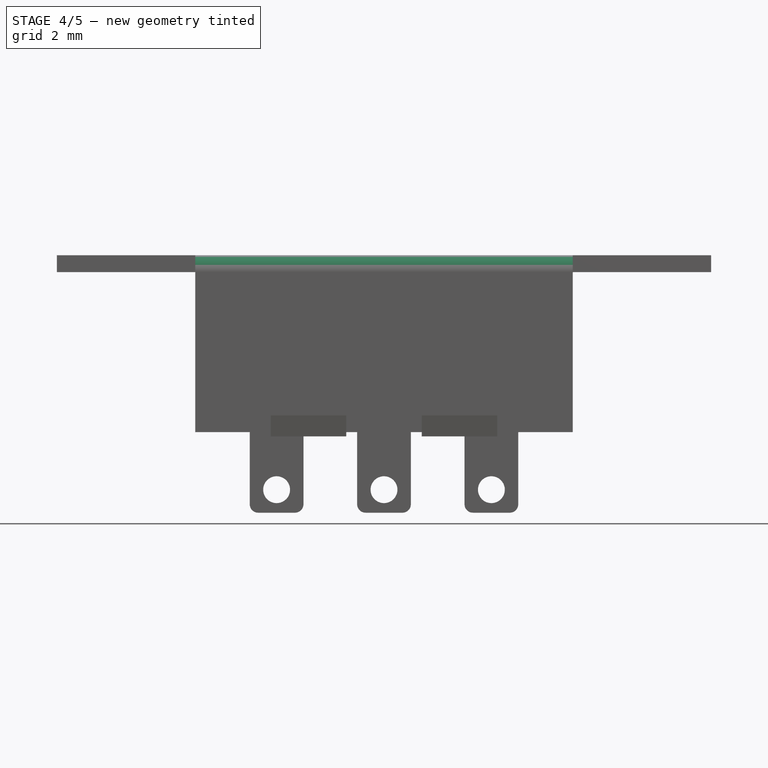
[diagram: stage 4 of 5 — front view after this stage's code; geometry added in this stage tinted green]
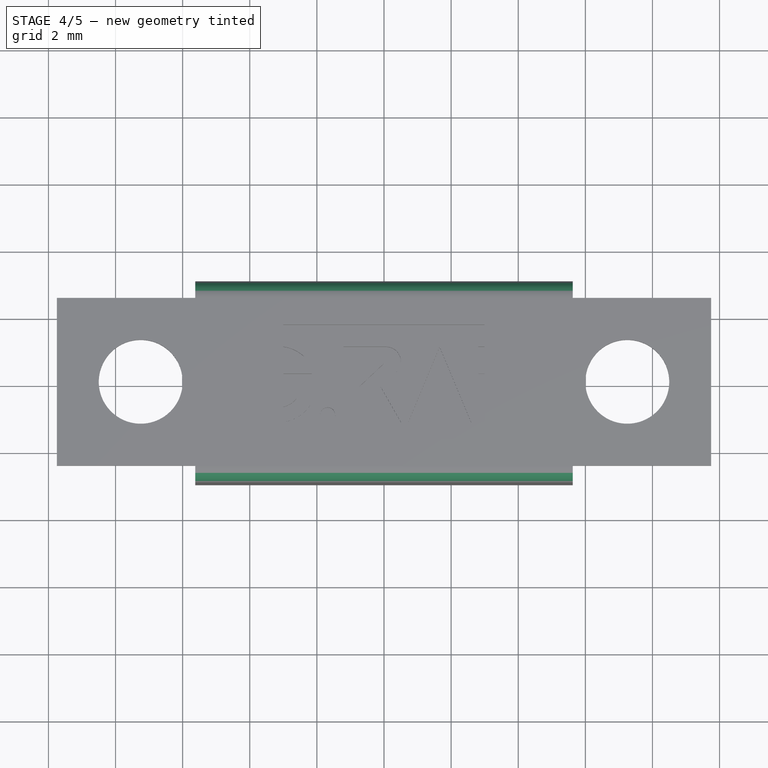
[diagram: stage 4 of 5 — top view after this stage's code; geometry added in this stage tinted green]
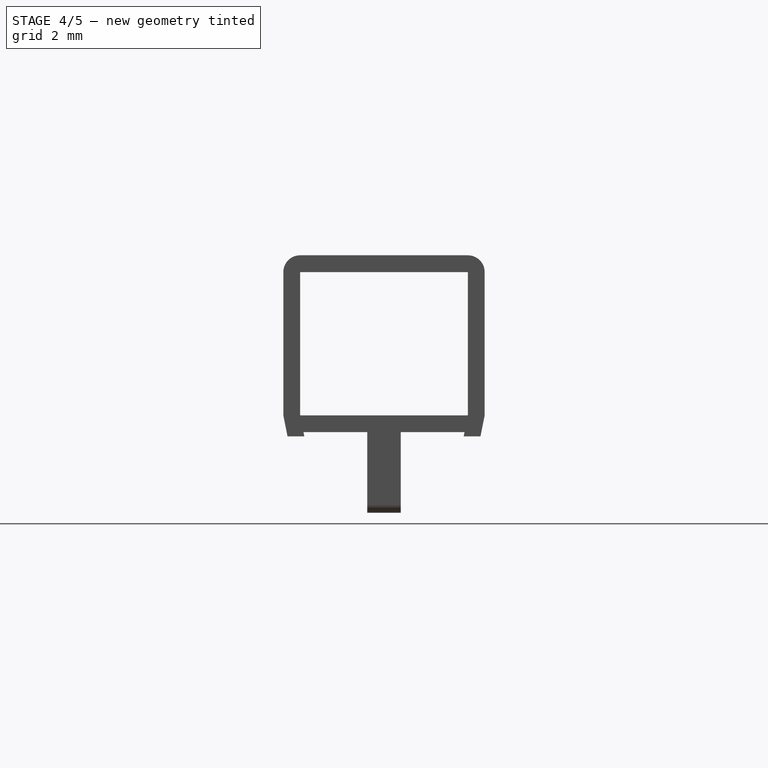
[diagram: stage 4 of 5 — right view after this stage's code; geometry added in this stage tinted green]
FEATURE [Sketcher::SketchObject] Sketch006
  ArcFitTolerance = 1e-06
  AttachmentOffset = pos=(0,0,-4.77) rot=(0,0,1;0rad)
  AttachmentSupport = -> [XY_Plane001]
  FullyConstrained = true
  MakeInternals = false
  MapMode = 5
  Placement = pos=(0,0,-4.77) rot=(0,0,1;0rad)
  expr: .AttachmentOffset.Base.z = -(<<Parameter>>.Housing_Front_Thickness + <<Parameter>>.Housing_Back_Thickness)
  expr: Constraints[10] = <<Parameter>>.Housing_Back_Width * 1 / 5
  expr: Constraints[11] = <<Parameter>>.Housing_Front_Length
  expr: Constraints[8] = <<Parameter>>.Housing_Back_Width / 2
  expr: Constraints[9] = <<Parameter>>.Housing_Back_Height / 2
  sketch-geometry (4):
    g0: LineSegment StartX=-5.625 StartY=3 StartZ=0 EndX=-5.625 EndY=-3 EndZ=0
    g1: LineSegment StartX=-5.625 StartY=-3 StartZ=0 EndX=-3.375 EndY=-3 EndZ=0
    g2: LineSegment StartX=-3.375 StartY=-3 StartZ=0 EndX=-3.375 EndY=3 EndZ=0
    g3: LineSegment StartX=-3.375 StartY=3 StartZ=0 EndX=-5.625 EndY=3 EndZ=0
  constraints (12):
    c: Coincident(g0,g1)
    c: Coincident(g1,g2)
    c: Coincident(g2,g3)
    c: Coincident(g3,g0)
    c: Vertical(g0)
    c: Vertical(g2)
    c: Horizontal(g1)
    c: Horizontal(g3)
    c: DistanceX(g0,g-1) = 5.625
    c: DistanceY(g-1,g0) = 3
    c: DistanceX(g3,g3) = 2.25
    c: DistanceY(g2,g2) = 6
FEATURE [PartDesign::Pocket] Pocket001
  BaseFeature = -> Pad004
  Direction = (0,0,-1)
  Length = 5
  Length2 = 5
  Profile = -> Sketch006
  ReferenceAxis = -> Sketch006 [N_Axis]
  Refine = true
  Suppressed = false
  Type = 1
FEATURE [Sketcher::SketchObject] Sketch007
  ArcFitTolerance = 1e-06
  AttachmentOffset = pos=(0,0,-4.77) rot=(0,0,1;0rad)
  AttachmentSupport = -> [XY_Plane001]
  FullyConstrained = true
  MakeInternals = false
  MapMode = 5
  Placement = pos=(0,0,-4.77) rot=(0,0,1;0rad)
  expr: .AttachmentOffset.Base.z = -(<<Parameter>>.Housing_Front_Thickness + <<Parameter>>.Housing_Back_Thickness)
  expr: Constraints[10] = <<Parameter>>.Housing_Front_Length
  expr: Constraints[11] = <<Parameter>>.Housing_Front_Length / 2
  expr: Constraints[8] = <<Parameter>>.Housing_Back_Width * 1 / 5
  expr: Constraints[9] = <<Parameter>>.Housing_Back_Width * 1 / 10
  sketch-geometry (4):
    g0: LineSegment StartX=-1.125 StartY=3 StartZ=0 EndX=-1.125 EndY=-3 EndZ=0
    g1: LineSegment StartX=-1.125 StartY=-3 StartZ=0 EndX=1.125 EndY=-3 EndZ=0
    g2: LineSegment StartX=1.125 StartY=-3 StartZ=0 EndX=1.125 EndY=3 EndZ=0
    g3: LineSegment StartX=1.125 StartY=3 StartZ=0 EndX=-1.125 EndY=3 EndZ=0
  constraints (12):
    c: Coincident(g0,g1)
    c: Coincident(g1,g2)
    c: Coincident(g2,g3)
    c: Coincident(g3,g0)
    c: Vertical(g0)
    c: Vertical(g2)
    c: Horizontal(g1)
    c: Horizontal(g3)
    c: DistanceX(g3,g3) = 2.25
    c: DistanceX(g0,g-1) = 1.125
    c: DistanceY(g2,g2) = 6
    c: DistanceY(g-1,g0) = 3
FEATURE [PartDesign::Pocket] Pocket002
  BaseFeature = -> Pocket001
  Direction = (0,0,-1)
  Length = 5
  Length2 = 5
  Profile = -> Sketch007
  ReferenceAxis = -> Sketch007 [N_Axis]
  Refine = true
  Suppressed = false
  Type = 1
FEATURE [Sketcher::SketchObject] Sketch008
  ArcFitTolerance = 1e-06
  AttachmentOffset = pos=(0,0,-4.77) rot=(0,0,1;0rad)
  AttachmentSupport = -> [XY_Plane001]
  FullyConstrained = true
  MakeInternals = false
  MapMode = 5
  Placement = pos=(0,0,-4.77) rot=(0,0,1;0rad)
  expr: .AttachmentOffset.Base.z = -(<<Parameter>>.Housing_Front_Thickness + <<Parameter>>.Housing_Back_Thickness)
  expr: Constraints[10] = <<Parameter>>.Housing_Back_Width / 2
  expr: Constraints[11] = <<Parameter>>.Housing_Back_Height / 2
  expr: Constraints[8] = <<Parameter>>.Housing_Back_Width * 1 / 5
  expr: Constraints[9] = <<Parameter>>.Housing_Front_Length
  sketch-geometry (4):
    g0: LineSegment StartX=3.375 StartY=3 StartZ=0 EndX=3.375 EndY=-3 EndZ=0
    g1: LineSegment StartX=3.375 StartY=-3 StartZ=0 EndX=5.625 EndY=-3 EndZ=0
    g2: LineSegment StartX=5.625 StartY=-3 StartZ=0 EndX=5.625 EndY=3 EndZ=0
    g3: LineSegment StartX=5.625 StartY=3 StartZ=0 EndX=3.375 EndY=3 EndZ=0
  constraints (12):
    c: Coincident(g0,g1)
    c: Coincident(g1,g2)
    c: Coincident(g2,g3)
    c: Coincident(g3,g0)
    c: Vertical(g0)
    c: Vertical(g2)
    c: Horizontal(g1)
    c: Horizontal(g3)
    c: DistanceX(g3,g3) = 2.25
    c: DistanceY(g2,g2) = 6
    c: DistanceX(g-1,g2) = 5.625
    c: DistanceY(g-1,g0) = 3
FEATURE [PartDesign::Pocket] Pocket003
  BaseFeature = -> Pocket002
  Direction = (0,0,-1)
  Length = 5
  Length2 = 5
  Profile = -> Sketch008
  ReferenceAxis = -> Sketch008 [N_Axis]
  Refine = true
  Suppressed = false
  Type = 1
FEATURE [PartDesign::Body] Body002  label="Switch"
  AllowCompound = false
  Group = -> [Sketch012,Pad006,Sketch013,Pocket006]
  Origin = -> Origin003
  Tip = -> Pocket006
FEATURE [PartDesign::Fillet] Fillet
  Base = -> Pocket003 [Edge20,Edge14]
  BaseFeature = -> Pocket003
  Radius = 0.5
  Refine = true
  SupportTransform = false
  Suppressed = false
  UseAllEdges = false
  expr: Radius = <<Parameter>>.Housing_Fillet
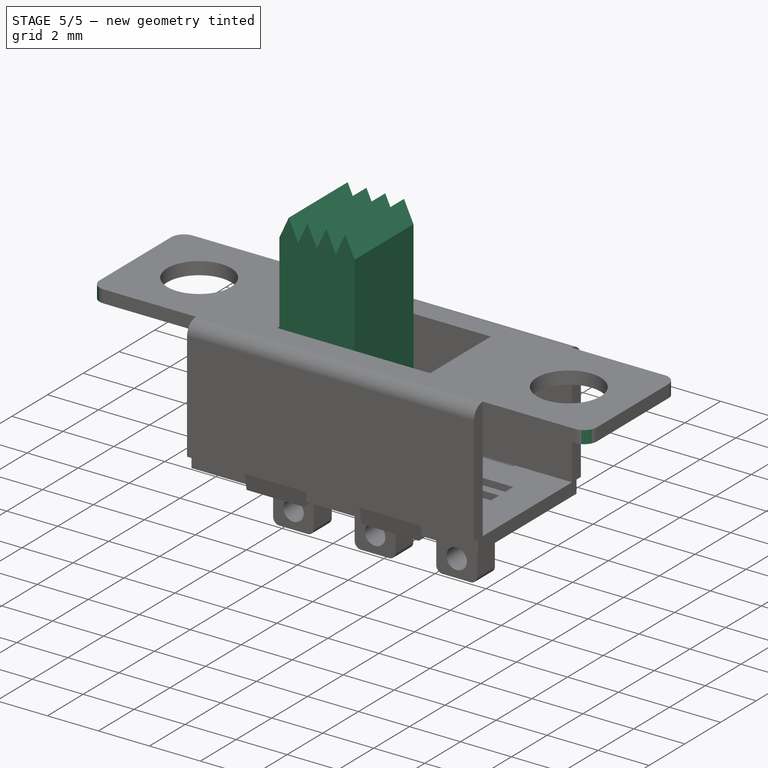
[diagram: stage 5 of 5 — iso view after this stage's code; geometry added in this stage tinted green]
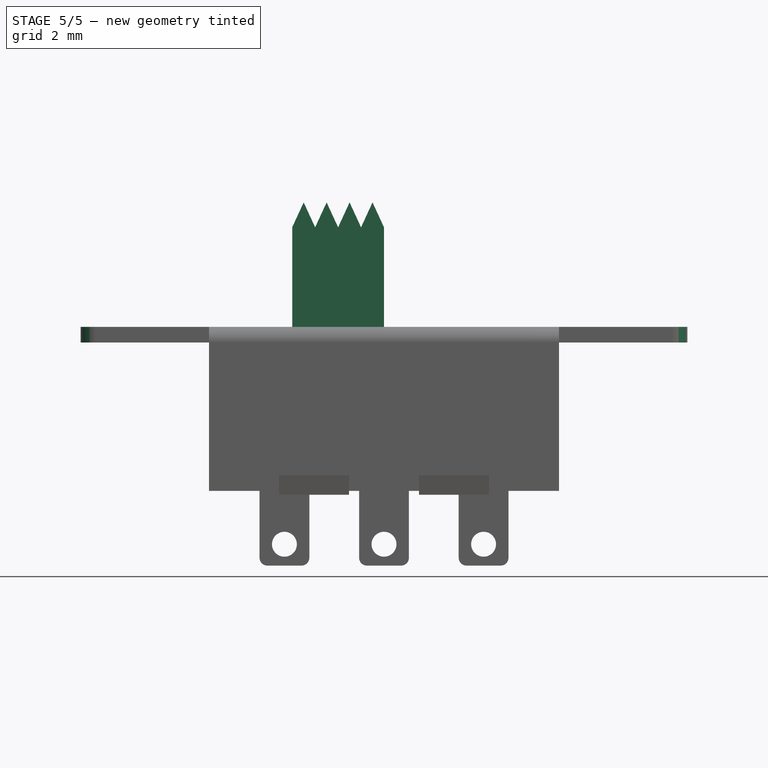
[diagram: stage 5 of 5 — front view after this stage's code; geometry added in this stage tinted green]
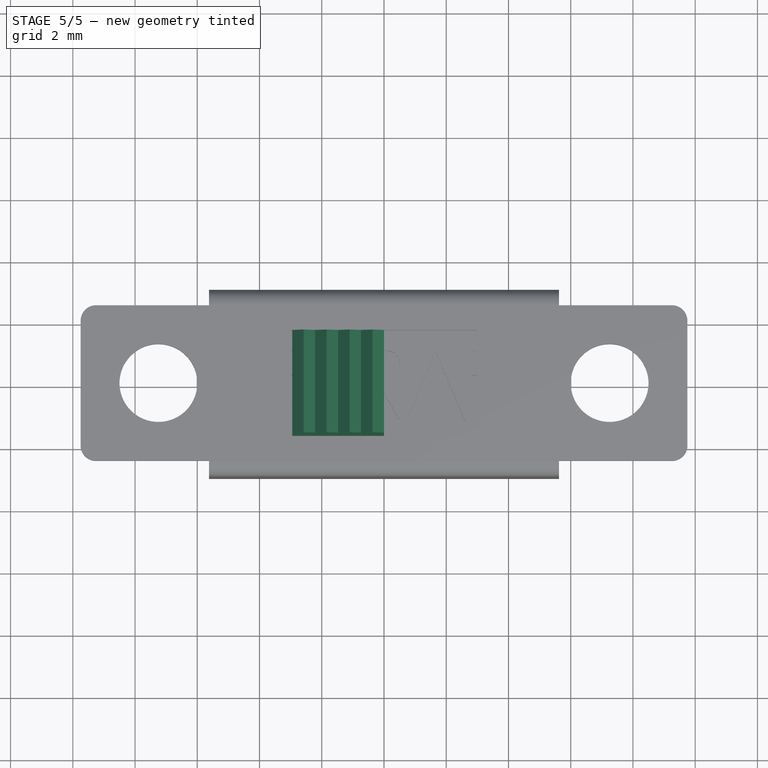
[diagram: stage 5 of 5 — top view after this stage's code; geometry added in this stage tinted green]
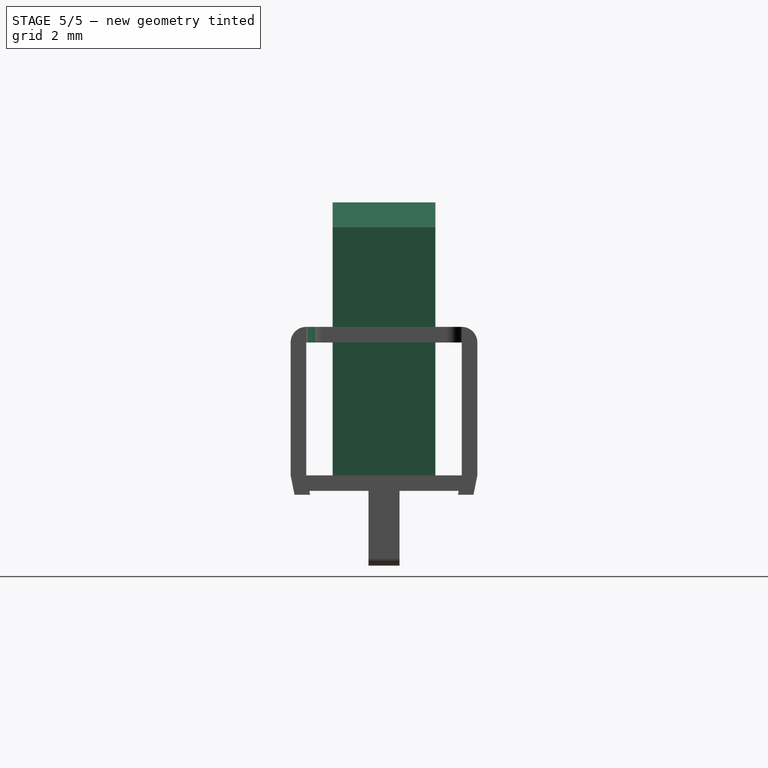
[diagram: stage 5 of 5 — right view after this stage's code; geometry added in this stage tinted green]
FEATURE [Sketcher::SketchObject] Sketch012
  ArcFitTolerance = 1e-06
  AttachmentOffset = pos=(0,0,-4.77) rot=(0,0,1;0rad)
  AttachmentSupport = -> [XY_Plane003]
  FullyConstrained = true
  MakeInternals = false
  MapMode = 5
  Placement = pos=(0,0,-4.77) rot=(0,0,1;0rad)
  expr: .AttachmentOffset.Base.z = -(<<Parameter>>.Housing_Front_Thickness + <<Parameter>>.Housing_Back_Thickness)
  expr: Constraints[10] = <<Parameter>>.Housing_Clearance_Length - <<Parameter>>.Housing_Front_Thickness * 1 / 5
  expr: Constraints[11] = <<Parameter>>.Housing_Clearance_Length / 2 - <<Parameter>>.Housing_Front_Thickness * 1 / 10
  expr: Constraints[9] = <<Parameter>>.Housing_Clearance_Width / 2 - <<Parameter>>.Housing_Front_Thickness * 1 / 10
  sketch-geometry (4):
    g0: LineSegment StartX=-2.95 StartY=1.65 StartZ=0 EndX=-2.95 EndY=-1.65 EndZ=0
    g1: LineSegment StartX=-2.95 StartY=-1.65 StartZ=0 EndX=0 EndY=-1.65 EndZ=0
    g2: LineSegment StartX=0 StartY=-1.65 StartZ=0 EndX=0 EndY=1.65 EndZ=0
    g3: LineSegment StartX=0 StartY=1.65 StartZ=0 EndX=-2.95 EndY=1.65 EndZ=0
  constraints (12):
    c: Coincident(g0,g1)
    c: Coincident(g1,g2)
    c: Coincident(g2,g3)
    c: Coincident(g3,g0)
    c: Vertical(g0)
    c: Vertical(g2)
    c: Horizontal(g1)
    c: Horizontal(g3)
    c: PointOnObject(g1,g-2)
    c: DistanceX(g3,g3) = 2.95
    c: DistanceY(g0,g0) = 3.3
    c: DistanceY(g-1,g2) = 1.65
FEATURE [PartDesign::Pad] Pad006
  Direction = (0,0,1)
  Length = 8.77
  Length2 = 10
  Profile = -> Sketch012
  ReferenceAxis = -> Sketch012 [N_Axis]
  Refine = true
  Suppressed = false
  Type = 0
  expr: Length = <<Parameter>>.Housing_Front_Thickness + <<Parameter>>.Housing_Back_Thickness + <<Parameter>>.Switch_Length
FEATURE [Sketcher::SketchObject] Sketch013
  ArcFitTolerance = 1e-06
  AttachmentSupport = -> [XZ_Plane003]
  FullyConstrained = true
  MakeInternals = false
  MapMode = 5
  Placement = pos=(0,0,0) rot=(1,0,0;1.5708rad)
  expr: Constraints[19] = (<<Parameter>>.Housing_Clearance_Width / 2 - <<Parameter>>.Housing_Front_Thickness * 1 / 10) / 8
  expr: Constraints[20] = (<<Parameter>>.Housing_Clearance_Width / 2 - <<Parameter>>.Housing_Front_Thickness * 1 / 10) * 3 / 8
  expr: Constraints[21] = (<<Parameter>>.Housing_Clearance_Width / 2 - <<Parameter>>.Housing_Front_Thickness * 1 / 10) * 5 / 8
  expr: Constraints[22] = (<<Parameter>>.Housing_Clearance_Width / 2 - <<Parameter>>.Housing_Front_Thickness * 1 / 10) * 7 / 8
  expr: Constraints[23] = (<<Parameter>>.Housing_Clearance_Width / 2 - <<Parameter>>.Housing_Front_Thickness * 1 / 10) * 1 / 4
  expr: Constraints[24] = (<<Parameter>>.Housing_Clearance_Width / 2 - <<Parameter>>.Housing_Front_Thickness * 1 / 10) / 2
  expr: Constraints[25] = (<<Parameter>>.Housing_Clearance_Width / 2 - <<Parameter>>.Housing_Front_Thickness * 1 / 10) * 3 / 4
  expr: Constraints[32] = <<Parameter>>.Switch_Length
  expr: Constraints[6] = <<Parameter>>.Switch_Length * 3 / 2
  expr: Constraints[8] = <<Parameter>>.Switch_Length * 4 / 5
  expr: Constraints[9] = <<Parameter>>.Housing_Clearance_Width / 2 - <<Parameter>>.Housing_Front_Thickness * 1 / 10
  sketch-geometry (11):
    g0: LineSegment StartX=-2.95 StartY=6 StartZ=0 EndX=-2.95 EndY=3.2 EndZ=0
    g1: LineSegment StartX=0 StartY=3.2 StartZ=0 EndX=0 EndY=6 EndZ=0
    g2: LineSegment StartX=0 StartY=6 StartZ=0 EndX=-2.95 EndY=6 EndZ=0
    g3: LineSegment StartX=-2.95 StartY=3.2 StartZ=0 EndX=-2.58125 EndY=4 EndZ=0
    g4: LineSegment StartX=-2.58125 StartY=4 StartZ=0 EndX=-2.2125 EndY=3.2 EndZ=0
    g5: LineSegment StartX=-2.2125 StartY=3.2 StartZ=0 EndX=-1.84375 EndY=4 EndZ=0
    g6: LineSegment StartX=-1.84375 StartY=4 StartZ=0 EndX=-1.475 EndY=3.2 EndZ=0
    g7: LineSegment StartX=-1.475 StartY=3.2 StartZ=0 EndX=-1.10625 EndY=4 EndZ=0
    g8: LineSegment StartX=-1.10625 StartY=4 StartZ=0 EndX=-0.7375 EndY=3.2 EndZ=0
    g9: LineSegment StartX=-0.7375 StartY=3.2 StartZ=0 EndX=-0.36875 EndY=4 EndZ=0
    g10: LineSegment StartX=-0.36875 StartY=4 StartZ=0 EndX=0 EndY=3.2 EndZ=0
  constraints (33):
    c: Coincident(g1,g2)
    c: Coincident(g2,g0)
    c: Vertical(g0)
    c: Vertical(g1)
    c: Horizontal(g2)
    c: PointOnObject(g1,g-2)
    c: DistanceY(g-1,g1) = 6
    c: Horizontal(g1,g0)
    c: DistanceY(g-1,g1) = 3.2
    c: DistanceX(g0,g-1) = 2.95
    c: Coincident(g5,g4)
    c: Coincident(g7,g6)
    c: Coincident(g8,g7)
    c: Coincident(g9,g8)
    c: Coincident(g10,g9)
    c: Coincident(g10,g1)
    c: Coincident(g6,g5)
    c: Coincident(g4,g3)
    c: Coincident(g3,g0)
    c: DistanceX(g9,g1) = 0.36875
    c: DistanceX(g7,g1) = 1.10625
    c: DistanceX(g5,g1) = 1.84375
    c: DistanceX(g3,g1) = 2.58125
    c: DistanceX(g8,g1) = 0.7375
    c: DistanceX(g6,g1) = 1.475
    c: DistanceX(g4,g1) = 2.2125
    c: Horizontal(g3,g5)
    c: Horizontal(g5,g7)
    c: Horizontal(g7,g9)
    c: Horizontal(g0,g4)
    c: Horizontal(g4,g6)
    c: Horizontal(g6,g8)
    c: DistanceY(g-1,g9) = 4
FEATURE [PartDesign::Pocket] Pocket006
  BaseFeature = -> Pad006
  Direction = (0,1,-2e-16)
  Length = 5
  Length2 = 5
  Midplane = true
  Profile = -> Sketch013
  ReferenceAxis = -> Sketch013 [N_Axis]
  Refine = true
  Suppressed = false
  Type = 1
FEATURE [PartDesign::Fillet] Fillet001
  Base = -> Fillet [Edge73,Edge69,Edge51,Edge17]
  BaseFeature = -> Fillet
  Radius = 0.5
  Refine = true
  SupportTransform = false
  Suppressed = false
  UseAllEdges = false
  expr: Radius = <<Parameter>>.Housing_Fillet
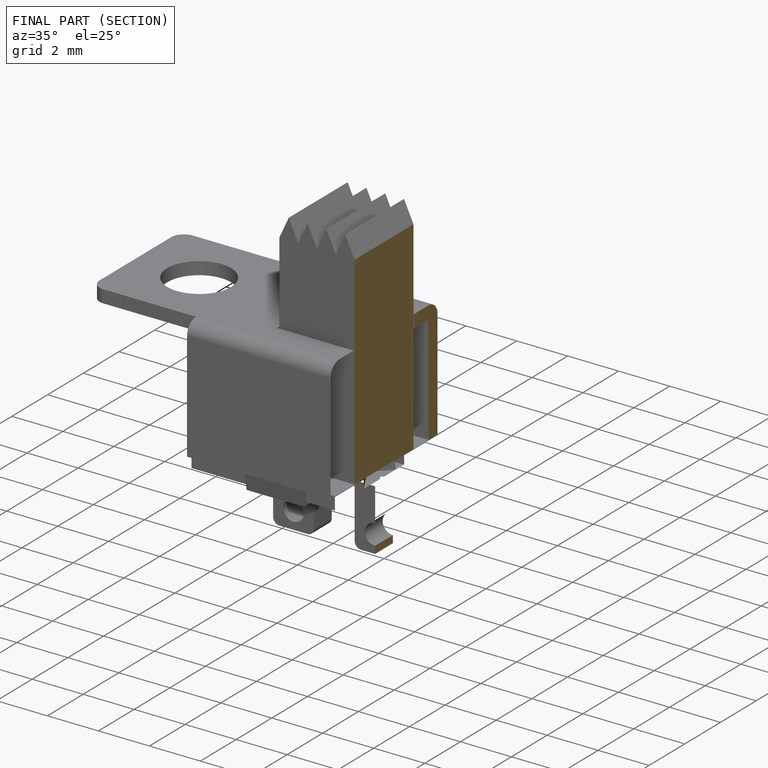
[diagram: finished part — half-section view (interior)]
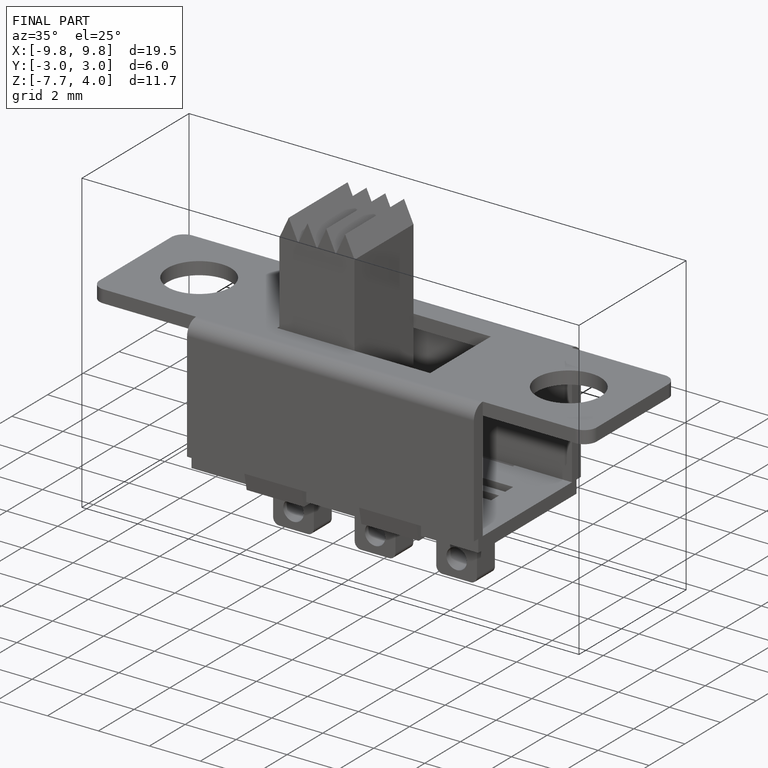
[diagram: finished part — iso view with bounding-box wireframe]
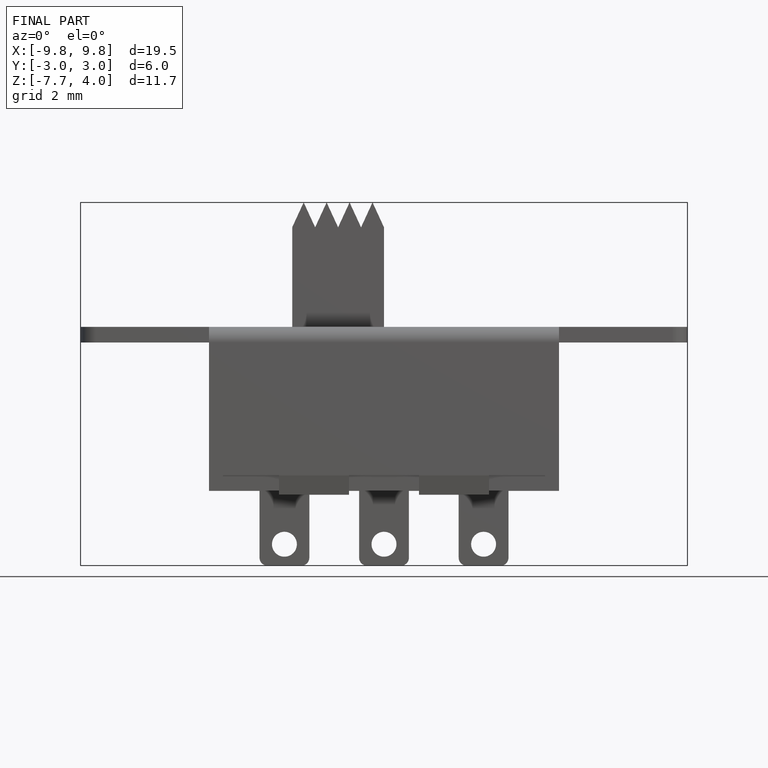
[diagram: finished part — front view with bounding-box wireframe]
